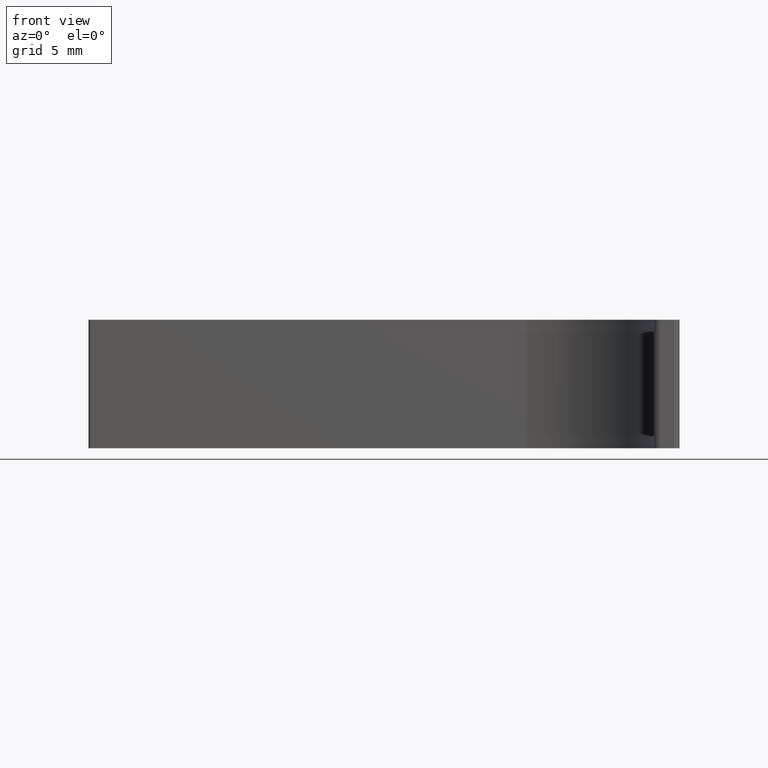
[diagram: clean part render]
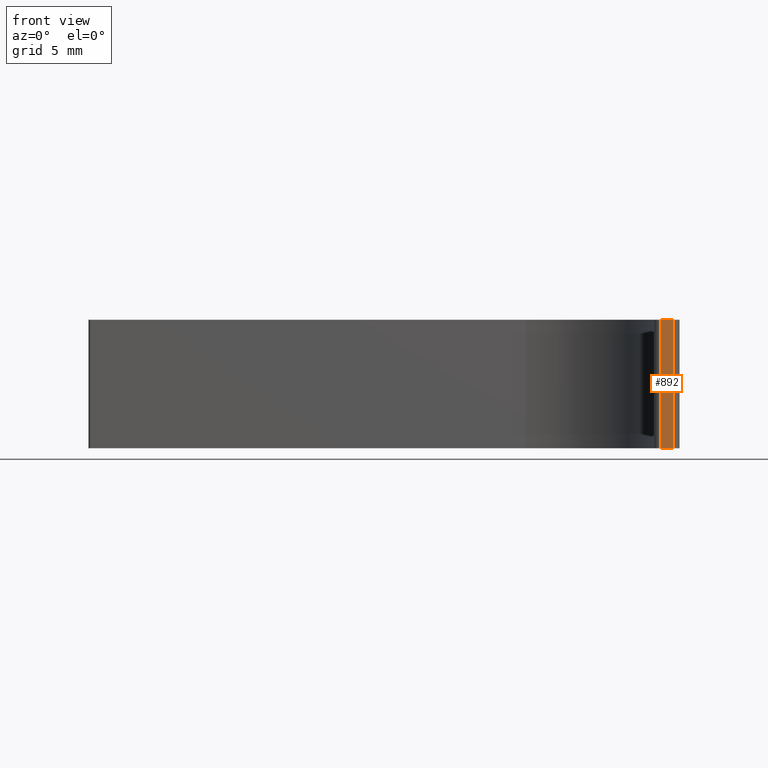
[diagram: same view with one face highlighted and labeled with its STEP entity id]
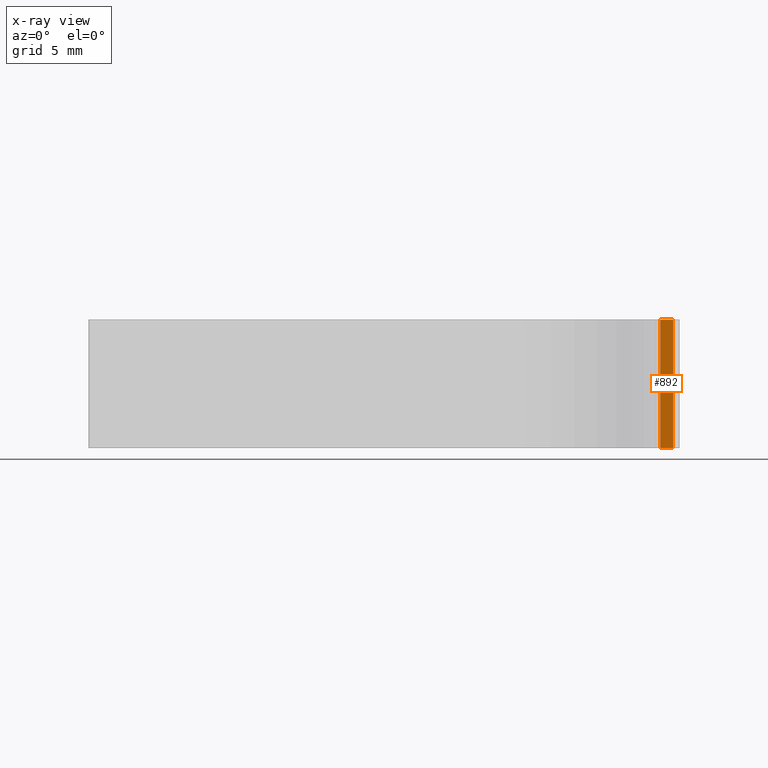
[diagram: x-ray of the same camera — body ghosted, the highlighted face saturated]
A machine part, front view. The second image highlights one B-rep face of the part: STEP entity #892.
The next image is the same camera in x-ray: the body ghosted, the highlighted face saturated — about 0% of this face is hidden behind the body in this view.
In plain terms, the highlighted planar face has unit normal (0, -1, 0).
Its self-contained STEP definition (entity closure, byte-faithful):
#19=PLANE('',#977);
#51=FACE_OUTER_BOUND('',#98,.T.);
#98=EDGE_LOOP('',(#707,#708,#709,#710));
#144=LINE('',#1306,#243);
#196=LINE('',#1473,#295);
#198=LINE('',#1478,#297);
#200=LINE('',#1481,#299);
#243=VECTOR('',#1037,1.00000000000001);
#295=VECTOR('',#1159,1.00000000000001);
#297=VECTOR('',#1165,10.);
#299=VECTOR('',#1169,10.);
#379=VERTEX_POINT('',#1303);
#380=VERTEX_POINT('',#1305);
#459=VERTEX_POINT('',#1470);
#460=VERTEX_POINT('',#1472);
#471=EDGE_CURVE('',#380,#379,#144,.T.);
#555=EDGE_CURVE('',#460,#459,#196,.T.);
#558=EDGE_CURVE('',#460,#379,#198,.T.);
#560=EDGE_CURVE('',#380,#459,#200,.T.);
#707=ORIENTED_EDGE('',*,*,#558,.F.);
#708=ORIENTED_EDGE('',*,*,#555,.T.);
#709=ORIENTED_EDGE('',*,*,#560,.F.);
#710=ORIENTED_EDGE('',*,*,#471,.T.);
#892=ADVANCED_FACE('',(#51),#19,.T.);
#977=AXIS2_PLACEMENT_3D('',#1480,#1167,#1168);
#1037=DIRECTION('',(1.,1.93082265152201E-16,0.));
#1159=DIRECTION('',(-1.,-1.93082265152201E-16,0.));
#1165=DIRECTION('',(0.,0.,-1.));
#1167=DIRECTION('center_axis',(1.93082265152201E-16,-1.,0.));
#1168=DIRECTION('ref_axis',(0.,0.,-1.));
#1169=DIRECTION('',(0.,0.,1.));
#1303=CARTESIAN_POINT('',(22.5,-16.,-5.));
#1305=CARTESIAN_POINT('',(21.5,-16.,-5.));
#1306=CARTESIAN_POINT('',(-23.,-16.,-5.));
#1470=CARTESIAN_POINT('',(21.5,-16.,5.));
#1472=CARTESIAN_POINT('',(22.5,-16.,5.));
#1473=CARTESIAN_POINT('',(-23.,-16.,5.));
#1478=CARTESIAN_POINT('',(22.5,-16.,0.));
#1480=CARTESIAN_POINT('Origin',(23.,-16.,0.));
#1481=CARTESIAN_POINT('',(21.5,-16.,0.));